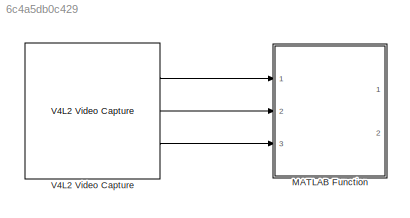
MODEL slx_6c4a5db0c429
KIND model
CONFIG AbsTol = auto
CONFIG EnableMultiTasking = off
CONFIG FixedStep = auto
CONFIG MaxStep = auto
CONFIG MinStep = auto
CONFIG RelTol = 1e-3
CONFIG SampleTimeConstraint = Unconstrained
CONFIG Solver = FixedStepAuto
CONFIG SolverName = FixedStepAuto
CONFIG StartTime = 0.0
CONFIG StopTime = inf
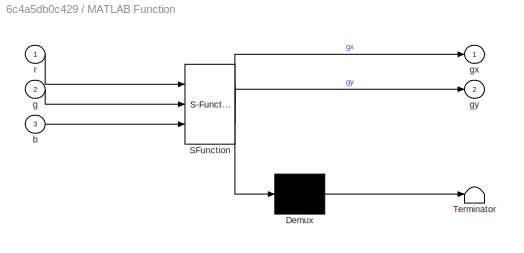
BLOCK [SubSystem] MATLAB Function
  ErrorFcn = Stateflow.Translate.translate
  PermitHierarchicalResolution = ExplicitOnly
  Ports = [3, 2]
  RequestExecContextInheritance = off
  SFBlockType = MATLAB Function
  TreatAsAtomicUnit = on
  Variant = off
BLOCK [Demux] MATLAB Function/ Demux 
  Outputs = 1
  Ports = [1, 1]
BLOCK [S-Function] MATLAB Function/ SFunction 
  EnableBusSupport = on
  FunctionName = sf_sfun
  PortCounts = [3 3]
  Ports = [3, 3]
  SFcnIsStateOwnerBlock = off
  SFunctionDeploymentMode = off
  Tag = Stateflow S-Function rester 2
BLOCK [Terminator] MATLAB Function/ Terminator 
BLOCK [Inport] MATLAB Function/b
  IconDisplay = Port number
  Port = 3
BLOCK [Inport] MATLAB Function/g
  IconDisplay = Port number
  Port = 2
BLOCK [Outport] MATLAB Function/gx
  IconDisplay = Port number
BLOCK [Outport] MATLAB Function/gy
  IconDisplay = Port number
  Port = 2
BLOCK [Inport] MATLAB Function/r
  IconDisplay = Port number
BLOCK [Reference] V4L2 Video Capture  REF=embdlinuxlib/V4L2 Video Capture
  Ports = [0, 3]
  SourceBlock = embdlinuxlib/V4L2 Video Capture
  SourceType = V4L2 Video Capture
LINE V4L2 Video Capture:1 -> MATLAB Function:1
LINE V4L2 Video Capture:2 -> MATLAB Function:2
LINE V4L2 Video Capture:3 -> MATLAB Function:3
CHART MATLAB Function states=1 transitions=1
  STATE_LABEL 'eML_blk_kernel()'
  STATE_LABEL "SCRIPT:\nfunction [gx, gy] = fcn(r,g, b)\nimage = uint8(zeros(480,640, 3));\n\nimage(:,:,1) = r'; \nimage(:,:, 2) = g'; \nimage(:, :, 3) = b'; \n\ncoder.extrinsic('imshow'); \nimshow(image);\n%viscircles(s.Centroid, 10);\n%[i,j]=find(greenBinary == 1)\n\n\nend "
